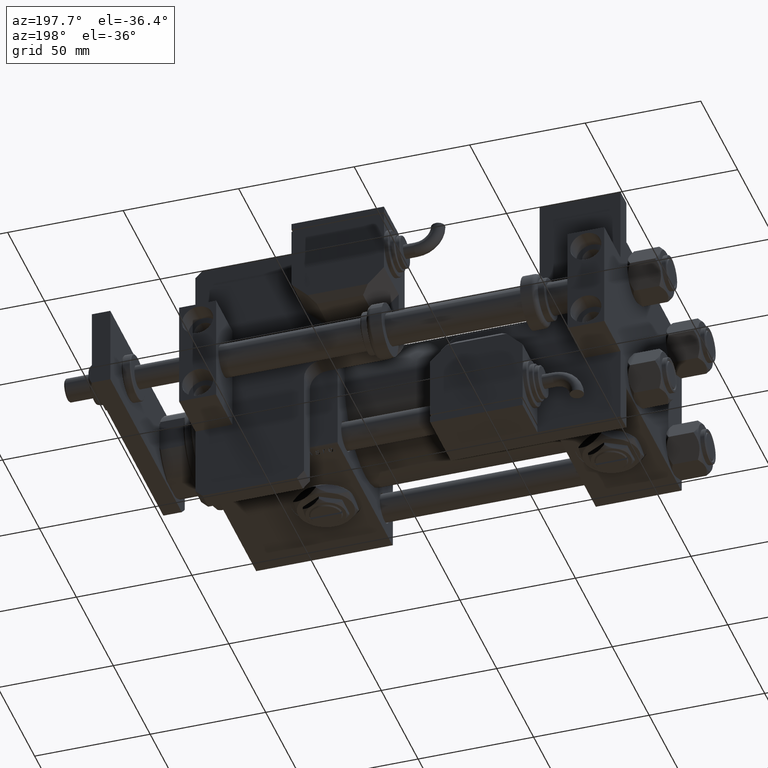
[diagram: clean part render]
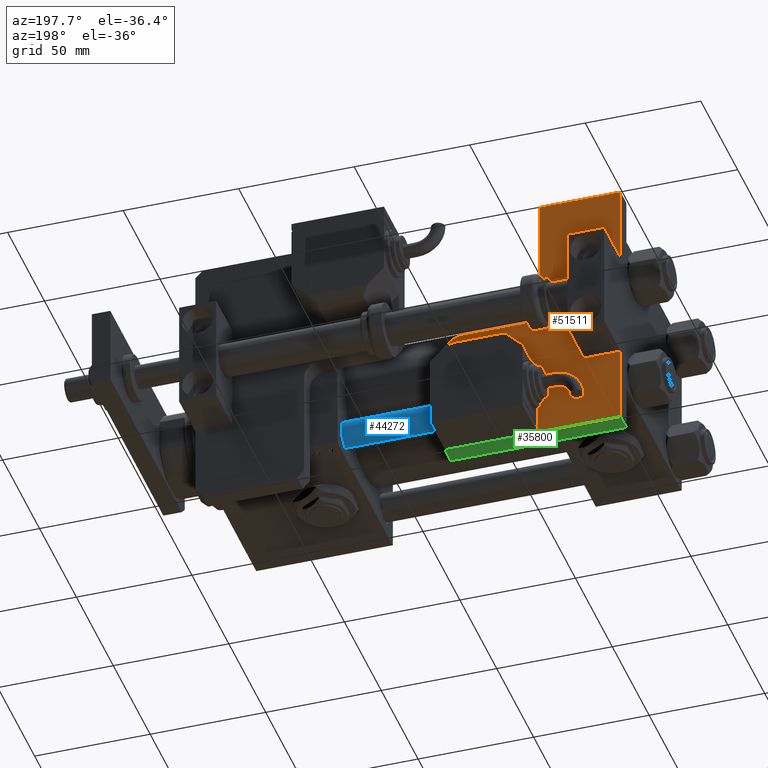
[diagram: same view with three faces highlighted in distinct colors, each labeled with its STEP entity id]
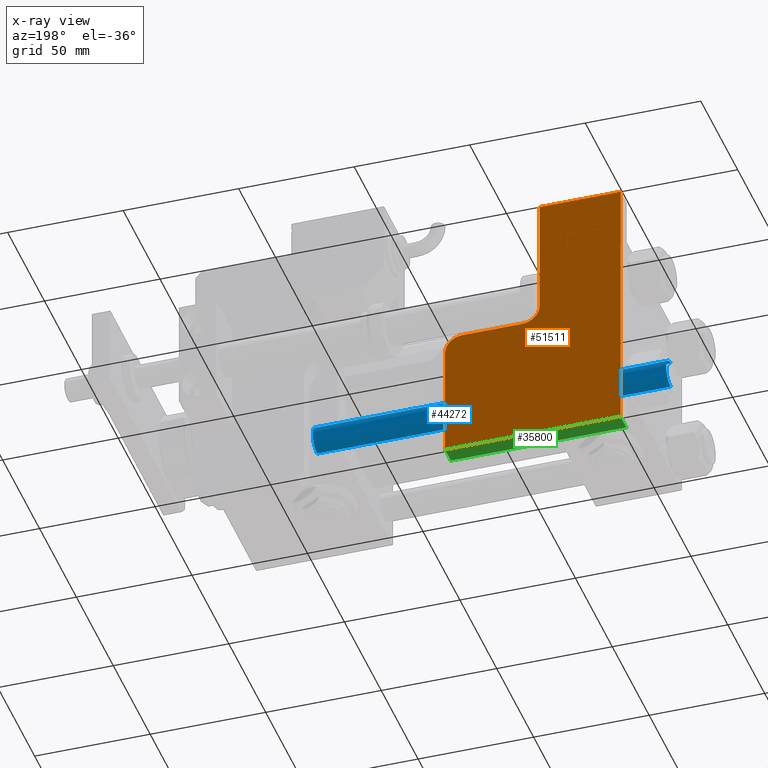
[diagram: x-ray of the same camera — body ghosted, the three highlighted faces saturated]
A machine part, auxiliary view with three faces highlighted in distinct colors.
The next image is the same camera in x-ray (body ghosted, the three faces saturated) — at least one of them is partly hidden behind the body in this view.
Their STEP definitions:

[orange] entity #51511 — the highlighted planar face has unit normal (0, 1, 0).
#1523 = LINE ( 'NONE', #46671, #45325 ) ;
#1552 = CARTESIAN_POINT ( 'NONE',  ( -42.49999999999997868, 64.50000000000008527, 8.000000000000000000 ) ) ;
#2726 = CARTESIAN_POINT ( 'NONE',  ( -34.99999999999997868, 64.50000000000008527, 8.000000000000000000 ) ) ;
#3553 = CARTESIAN_POINT ( 'NONE',  ( -76.00000000000004263, 0.000000000000000000, 8.000000000000000000 ) ) ;
#4221 = VERTEX_POINT ( 'NONE', #36868 ) ;
#4525 = CIRCLE ( 'NONE', #55118, 7.500000000000000000 ) ;
#4536 = VERTEX_POINT ( 'NONE', #29475 ) ;
#5480 = AXIS2_PLACEMENT_3D ( 'NONE', #7681, #25258, #43178 ) ;
#5519 = VECTOR ( 'NONE', #22004, 1000.000000000000000 ) ;
#6349 = DIRECTION ( 'NONE',  ( 1.000000000000000000, 0.000000000000000000, 0.000000000000000000 ) ) ;
#7394 = PLANE ( 'NONE',  #5480 ) ;
#7681 = CARTESIAN_POINT ( 'NONE',  ( 0.000000000000000000, 0.000000000000000000, 8.000000000000000000 ) ) ;
#7837 = EDGE_CURVE ( 'NONE', #48978, #10644, #4525, .T. ) ;
#8328 = DIRECTION ( 'NONE',  ( 2.392722035830083409E-16, -1.000000000000000000, 0.000000000000000000 ) ) ;
#9453 = VECTOR ( 'NONE', #8328, 1000.000000000000000 ) ;
#9589 = CARTESIAN_POINT ( 'NONE',  ( -34.99999999999997868, 57.00000000000009237, 8.000000000000000000 ) ) ;
#10644 = VERTEX_POINT ( 'NONE', #20019 ) ;
#12297 = EDGE_CURVE ( 'NONE', #10644, #42306, #39661, .T. ) ;
#15325 = DIRECTION ( 'NONE',  ( 1.000000000000000000, 0.000000000000000000, 0.000000000000000000 ) ) ;
#15714 = VERTEX_POINT ( 'NONE', #2726 ) ;
#15782 = CIRCLE ( 'NONE', #46675, 7.500000000000000000 ) ;
#16253 = ORIENTED_EDGE ( 'NONE', *, *, #51432, .T. ) ;
#19705 = VECTOR ( 'NONE', #44351, 1000.000000000000000 ) ;
#20019 = CARTESIAN_POINT ( 'NONE',  ( -76.00000000000005684, 49.50000000000008527, 8.000000000000000000 ) ) ;
#21517 = LINE ( 'NONE', #48497, #9453 ) ;
#22004 = DIRECTION ( 'NONE',  ( 1.000000000000000000, 0.000000000000000000, 0.000000000000000000 ) ) ;
#22126 = VERTEX_POINT ( 'NONE', #37483 ) ;
#22157 = ORIENTED_EDGE ( 'NONE', *, *, #7837, .T. ) ;
#22764 = DIRECTION ( 'NONE',  ( -1.000000000000000000, -1.692413147294442765E-16, 0.000000000000000000 ) ) ;
#24496 = CARTESIAN_POINT ( 'NONE',  ( -68.50000000000005684, 57.00000000000008527, 8.000000000000000000 ) ) ;
#25258 = DIRECTION ( 'NONE',  ( 0.000000000000000000, 0.000000000000000000, 1.000000000000000000 ) ) ;
#25817 = FACE_OUTER_BOUND ( 'NONE', #33948, .T. ) ;
#25910 = CARTESIAN_POINT ( 'NONE',  ( 0.000000000000000000, 0.000000000000000000, 8.000000000000000000 ) ) ;
#26446 = CARTESIAN_POINT ( 'NONE',  ( -76.00000000000005684, 57.00000000000008527, 8.000000000000000000 ) ) ;
#26607 = ORIENTED_EDGE ( 'NONE', *, *, #48285, .T. ) ;
#26696 = LINE ( 'NONE', #44319, #5519 ) ;
#27919 = DIRECTION ( 'NONE',  ( -0.000000000000000000, -0.000000000000000000, -1.000000000000000000 ) ) ;
#28905 = DIRECTION ( 'NONE',  ( 0.000000000000000000, 0.000000000000000000, 1.000000000000000000 ) ) ;
#29219 = CARTESIAN_POINT ( 'NONE',  ( -42.49999999999997868, 57.00000000000009237, 8.000000000000000000 ) ) ;
#29475 = CARTESIAN_POINT ( 'NONE',  ( -34.99999999999999289, 114.9999999999999716, 8.000000000000000000 ) ) ;
#31854 = LINE ( 'NONE', #9589, #34101 ) ;
#32184 = EDGE_CURVE ( 'NONE', #4536, #15714, #21517, .T. ) ;
#32453 = VECTOR ( 'NONE', #43829, 1000.000000000000000 ) ;
#33948 = EDGE_LOOP ( 'NONE', ( #49954, #22157, #49935, #39991, #26607, #35188, #36385, #16253 ) ) ;
#34101 = VECTOR ( 'NONE', #22764, 1000.000000000000000 ) ;
#35188 = ORIENTED_EDGE ( 'NONE', *, *, #41436, .T. ) ;
#36385 = ORIENTED_EDGE ( 'NONE', *, *, #32184, .T. ) ;
#36847 = CARTESIAN_POINT ( 'NONE',  ( -68.50000000000005684, 49.50000000000008527, 8.000000000000000000 ) ) ;
#36868 = CARTESIAN_POINT ( 'NONE',  ( 0.000000000000000000, 0.000000000000000000, 8.000000000000000000 ) ) ;
#37483 = CARTESIAN_POINT ( 'NONE',  ( 0.000000000000000000, 115.0000000000000142, 8.000000000000000000 ) ) ;
#39661 = LINE ( 'NONE', #26446, #19705 ) ;
#39991 = ORIENTED_EDGE ( 'NONE', *, *, #51648, .T. ) ;
#41436 = EDGE_CURVE ( 'NONE', #22126, #4536, #1523, .T. ) ;
#41709 = EDGE_CURVE ( 'NONE', #42797, #48978, #31854, .T. ) ;
#42306 = VERTEX_POINT ( 'NONE', #3553 ) ;
#42797 = VERTEX_POINT ( 'NONE', #29219 ) ;
#43178 = DIRECTION ( 'NONE',  ( 1.000000000000000000, 0.000000000000000000, -0.000000000000000000 ) ) ;
#43829 = DIRECTION ( 'NONE',  ( 0.000000000000000000, 1.000000000000000000, 0.000000000000000000 ) ) ;
#44319 = CARTESIAN_POINT ( 'NONE',  ( -76.00000000000004263, 0.000000000000000000, 8.000000000000000000 ) ) ;
#44351 = DIRECTION ( 'NONE',  ( 2.434699615406041273E-16, -1.000000000000000000, 0.000000000000000000 ) ) ;
#45325 = VECTOR ( 'NONE', #51042, 1000.000000000000000 ) ;
#46671 = CARTESIAN_POINT ( 'NONE',  ( 0.000000000000000000, 115.0000000000000142, 8.000000000000000000 ) ) ;
#46675 = AXIS2_PLACEMENT_3D ( 'NONE', #1552, #27919, #15325 ) ;
#48214 = LINE ( 'NONE', #25910, #32453 ) ;
#48285 = EDGE_CURVE ( 'NONE', #4221, #22126, #48214, .T. ) ;
#48497 = CARTESIAN_POINT ( 'NONE',  ( -34.99999999999999289, 114.9999999999999716, 8.000000000000000000 ) ) ;
#48978 = VERTEX_POINT ( 'NONE', #24496 ) ;
#49935 = ORIENTED_EDGE ( 'NONE', *, *, #12297, .T. ) ;
#49954 = ORIENTED_EDGE ( 'NONE', *, *, #41709, .T. ) ;
#51042 = DIRECTION ( 'NONE',  ( -1.000000000000000000, -1.189524669241239460E-15, 0.000000000000000000 ) ) ;
#51432 = EDGE_CURVE ( 'NONE', #15714, #42797, #15782, .T. ) ;
#51511 = ADVANCED_FACE ( 'NONE', ( #25817 ), #7394, .T. ) ;
#51648 = EDGE_CURVE ( 'NONE', #42306, #4221, #26696, .T. ) ;
#55118 = AXIS2_PLACEMENT_3D ( 'NONE', #36847, #28905, #6349 ) ;

[blue] entity #44272 — the highlighted cylindrical surface (edge-blend (fillet) strip) has radius 6 mm, axis along (1, -0, -0).
#978 = DIRECTION ( 'NONE',  ( -1.000000000000000000, 0.000000000000000000, 0.000000000000000000 ) ) ;
#5099 = CIRCLE ( 'NONE', #26609, 6.000000000000000888 ) ;
#5390 = DIRECTION ( 'NONE',  ( -0.000000000000000000, -0.000000000000000000, -1.000000000000000000 ) ) ;
#7322 = EDGE_CURVE ( 'NONE', #36279, #47921, #36767, .T. ) ;
#7460 = ORIENTED_EDGE ( 'NONE', *, *, #38251, .T. ) ;
#9780 = CARTESIAN_POINT ( 'NONE',  ( 6.000000000000000888, 7.347880794884120722E-16, 154.0000000000000000 ) ) ;
#10309 = CARTESIAN_POINT ( 'NONE',  ( -6.000000000000000888, 0.000000000000000000, 0.5000000000000281997 ) ) ;
#10549 = LINE ( 'NONE', #41055, #47559 ) ;
#13061 = CARTESIAN_POINT ( 'NONE',  ( 6.000000000000000888, 7.347880794884120722E-16, 153.5000000000000000 ) ) ;
#13483 = ORIENTED_EDGE ( 'NONE', *, *, #7322, .T. ) ;
#14594 = DIRECTION ( 'NONE',  ( 1.000000000000000000, 0.000000000000000000, 0.000000000000000000 ) ) ;
#16470 = CARTESIAN_POINT ( 'NONE',  ( 0.000000000000000000, 0.000000000000000000, 0.5000000000000281997 ) ) ;
#18993 = CARTESIAN_POINT ( 'NONE',  ( 0.000000000000000000, 0.000000000000000000, 153.5000000000000000 ) ) ;
#20689 = ORIENTED_EDGE ( 'NONE', *, *, #51463, .T. ) ;
#23213 = CARTESIAN_POINT ( 'NONE',  ( 0.000000000000000000, 0.000000000000000000, 154.0000000000000000 ) ) ;
#26284 = CARTESIAN_POINT ( 'NONE',  ( 6.000000000000000888, 7.347880794884120722E-16, 0.5000000000000281997 ) ) ;
#26609 = AXIS2_PLACEMENT_3D ( 'NONE', #18993, #36885, #14594 ) ;
#27614 = CYLINDRICAL_SURFACE ( 'NONE', #33391, 6.000000000000000888 ) ;
#30245 = DIRECTION ( 'NONE',  ( -0.000000000000000000, -0.000000000000000000, 1.000000000000000000 ) ) ;
#30750 = AXIS2_PLACEMENT_3D ( 'NONE', #16470, #30245, #56352 ) ;
#33391 = AXIS2_PLACEMENT_3D ( 'NONE', #23213, #41134, #978 ) ;
#36279 = VERTEX_POINT ( 'NONE', #13061 ) ;
#36767 = LINE ( 'NONE', #9780, #50376 ) ;
#36885 = DIRECTION ( 'NONE',  ( 0.000000000000000000, 0.000000000000000000, -1.000000000000000000 ) ) ;
#38251 = EDGE_CURVE ( 'NONE', #50476, #36279, #5099, .T. ) ;
#40557 = FACE_OUTER_BOUND ( 'NONE', #54614, .T. ) ;
#41055 = CARTESIAN_POINT ( 'NONE',  ( -6.000000000000000888, 0.000000000000000000, 154.0000000000000000 ) ) ;
#41065 = CIRCLE ( 'NONE', #30750, 6.000000000000000888 ) ;
#41134 = DIRECTION ( 'NONE',  ( -0.000000000000000000, -0.000000000000000000, -1.000000000000000000 ) ) ;
#44272 = ADVANCED_FACE ( 'NONE', ( #40557 ), #27614, .T. ) ;
#47488 = EDGE_CURVE ( 'NONE', #50476, #57625, #10549, .T. ) ;
#47559 = VECTOR ( 'NONE', #55687, 1000.000000000000000 ) ;
#47608 = ORIENTED_EDGE ( 'NONE', *, *, #47488, .F. ) ;
#47921 = VERTEX_POINT ( 'NONE', #26284 ) ;
#50376 = VECTOR ( 'NONE', #5390, 1000.000000000000000 ) ;
#50476 = VERTEX_POINT ( 'NONE', #54590 ) ;
#51463 = EDGE_CURVE ( 'NONE', #47921, #57625, #41065, .T. ) ;
#54590 = CARTESIAN_POINT ( 'NONE',  ( -6.000000000000000888, 0.000000000000000000, 153.5000000000000000 ) ) ;
#54614 = EDGE_LOOP ( 'NONE', ( #7460, #13483, #20689, #47608 ) ) ;
#55687 = DIRECTION ( 'NONE',  ( -0.000000000000000000, -0.000000000000000000, -1.000000000000000000 ) ) ;
#56352 = DIRECTION ( 'NONE',  ( 1.000000000000000000, 0.000000000000000000, 0.000000000000000000 ) ) ;
#57625 = VERTEX_POINT ( 'NONE', #10309 ) ;

[green] entity #35800 — the highlighted planar face has unit normal (0, 0, 1).
#942 = CARTESIAN_POINT ( 'NONE',  ( -76.00000000000004263, 0.000000000000000000, 8.000000000000000000 ) ) ;
#2523 = EDGE_CURVE ( 'NONE', #42306, #38060, #50753, .T. ) ;
#3553 = CARTESIAN_POINT ( 'NONE',  ( -76.00000000000004263, 0.000000000000000000, 8.000000000000000000 ) ) ;
#4221 = VERTEX_POINT ( 'NONE', #36868 ) ;
#5519 = VECTOR ( 'NONE', #22004, 1000.000000000000000 ) ;
#8897 = DIRECTION ( 'NONE',  ( 0.000000000000000000, -0.000000000000000000, 1.000000000000000000 ) ) ;
#10888 = DIRECTION ( 'NONE',  ( -0.000000000000000000, -0.000000000000000000, -1.000000000000000000 ) ) ;
#11939 = VECTOR ( 'NONE', #28461, 1000.000000000000000 ) ;
#15536 = CARTESIAN_POINT ( 'NONE',  ( -76.00000000000004263, 0.000000000000000000, 0.000000000000000000 ) ) ;
#16033 = EDGE_CURVE ( 'NONE', #38060, #29647, #24897, .T. ) ;
#17697 = PLANE ( 'NONE',  #22747 ) ;
#19687 = LINE ( 'NONE', #50763, #36917 ) ;
#20348 = ORIENTED_EDGE ( 'NONE', *, *, #51648, .F. ) ;
#21484 = ORIENTED_EDGE ( 'NONE', *, *, #2523, .T. ) ;
#22004 = DIRECTION ( 'NONE',  ( 1.000000000000000000, 0.000000000000000000, 0.000000000000000000 ) ) ;
#22747 = AXIS2_PLACEMENT_3D ( 'NONE', #39986, #25890, #8897 ) ;
#24897 = LINE ( 'NONE', #15536, #53666 ) ;
#25890 = DIRECTION ( 'NONE',  ( 0.000000000000000000, 1.000000000000000000, 0.000000000000000000 ) ) ;
#26696 = LINE ( 'NONE', #44319, #5519 ) ;
#28461 = DIRECTION ( 'NONE',  ( -0.000000000000000000, -0.000000000000000000, -1.000000000000000000 ) ) ;
#29647 = VERTEX_POINT ( 'NONE', #31592 ) ;
#31077 = ORIENTED_EDGE ( 'NONE', *, *, #16033, .T. ) ;
#31455 = FACE_OUTER_BOUND ( 'NONE', #57938, .T. ) ;
#31592 = CARTESIAN_POINT ( 'NONE',  ( 0.000000000000000000, 0.000000000000000000, 0.000000000000000000 ) ) ;
#35144 = CARTESIAN_POINT ( 'NONE',  ( -76.00000000000004263, 0.000000000000000000, 0.000000000000000000 ) ) ;
#35800 = ADVANCED_FACE ( 'NONE', ( #31455 ), #17697, .F. ) ;
#36868 = CARTESIAN_POINT ( 'NONE',  ( 0.000000000000000000, 0.000000000000000000, 8.000000000000000000 ) ) ;
#36917 = VECTOR ( 'NONE', #10888, 1000.000000000000000 ) ;
#38060 = VERTEX_POINT ( 'NONE', #35144 ) ;
#39986 = CARTESIAN_POINT ( 'NONE',  ( -76.00000000000004263, 0.000000000000000000, 8.000000000000000000 ) ) ;
#41963 = EDGE_CURVE ( 'NONE', #4221, #29647, #19687, .T. ) ;
#42306 = VERTEX_POINT ( 'NONE', #3553 ) ;
#42815 = DIRECTION ( 'NONE',  ( 1.000000000000000000, 0.000000000000000000, 0.000000000000000000 ) ) ;
#44319 = CARTESIAN_POINT ( 'NONE',  ( -76.00000000000004263, 0.000000000000000000, 8.000000000000000000 ) ) ;
#50753 = LINE ( 'NONE', #942, #11939 ) ;
#50763 = CARTESIAN_POINT ( 'NONE',  ( 0.000000000000000000, 0.000000000000000000, 8.000000000000000000 ) ) ;
#51648 = EDGE_CURVE ( 'NONE', #42306, #4221, #26696, .T. ) ;
#53666 = VECTOR ( 'NONE', #42815, 1000.000000000000000 ) ;
#56648 = ORIENTED_EDGE ( 'NONE', *, *, #41963, .F. ) ;
#57938 = EDGE_LOOP ( 'NONE', ( #31077, #56648, #20348, #21484 ) ) ;